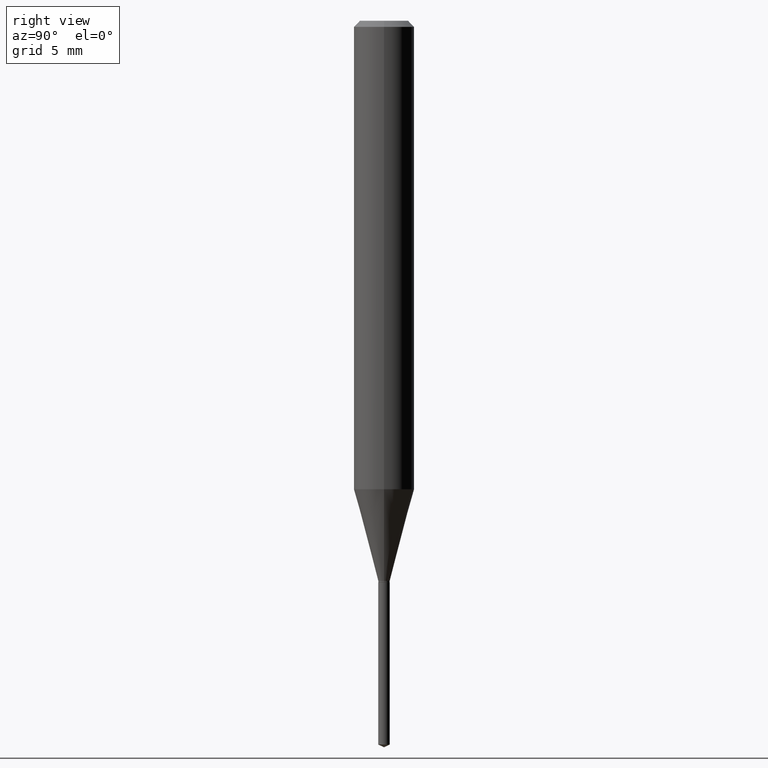
[diagram: clean part render]
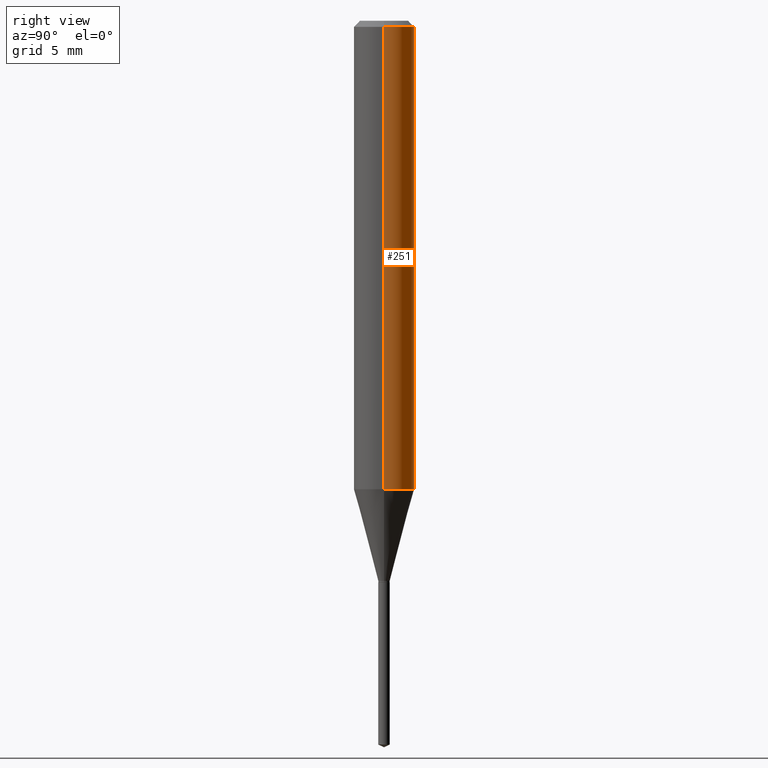
[diagram: same view with one face highlighted and labeled with its STEP entity id]
A machine part, right view. The second image highlights one B-rep face of the part: STEP entity #251.
In plain terms, the highlighted cylindrical surface (edge-blend (fillet) strip) has radius 1.5875 mm, axis along (-0, 0, 1).
Its self-contained STEP definition (entity closure, byte-faithful):
#2 = CIRCLE ( 'NONE', #232, 0.06250000000000000000 ) ;
#6 = DIRECTION ( 'NONE',  ( -2.445468806185136877E-29, 3.491481338843145188E-15, 1.000000000000000000 ) ) ;
#20 = DIRECTION ( 'NONE',  ( 1.000000000000000000, -6.982962677686264344E-15, 0.000000000000000000 ) ) ;
#33 = CARTESIAN_POINT ( 'NONE',  ( 3.056836007731441415E-31, -4.364351673553961684E-17, -0.01250000000000008396 ) ) ;
#37 = DIRECTION ( 'NONE',  ( -2.445468806185136597E-29, 3.491481338843145583E-15, 1.000000000000000000 ) ) ;
#43 = ORIENTED_EDGE ( 'NONE', *, *, #271, .T. ) ;
#47 = CARTESIAN_POINT ( 'NONE',  ( -0.06250000000000000000, -1.266361353935139822E-15, -0.01250000000000008396 ) ) ;
#56 = LINE ( 'NONE', #160, #204 ) ;
#72 = EDGE_CURVE ( 'NONE', #325, #250, #2, .T. ) ;
#89 = FACE_OUTER_BOUND ( 'NONE', #486, .T. ) ;
#103 = CIRCLE ( 'NONE', #375, 0.06250000000000012490 ) ;
#129 = DIRECTION ( 'NONE',  ( -2.445468806185136877E-29, 3.491481338843145188E-15, 1.000000000000000000 ) ) ;
#133 = CARTESIAN_POINT ( 'NONE',  ( 0.000000000000000000, 0.000000000000000000, 0.000000000000000000 ) ) ;
#160 = CARTESIAN_POINT ( 'NONE',  ( -0.06250000000000006939, 4.440892098500631092E-16, -3.074334431409319267E-30 ) ) ;
#189 = CARTESIAN_POINT ( 'NONE',  ( 0.06250000000000006939, -4.364351673553921624E-16, 3.047610484872463374E-30 ) ) ;
#197 = ORIENTED_EDGE ( 'NONE', *, *, #72, .F. ) ;
#201 = DIRECTION ( 'NONE',  ( 1.000000000000000000, -6.982962677686266711E-15, 4.876176775795935793E-29 ) ) ;
#203 = CYLINDRICAL_SURFACE ( 'NONE', #221, 0.06250000000000006939 ) ;
#204 = VECTOR ( 'NONE', #129, 39.37007874015748143 ) ;
#221 = AXIS2_PLACEMENT_3D ( 'NONE', #133, #384, #201 ) ;
#232 = AXIS2_PLACEMENT_3D ( 'NONE', #33, #37, #478 ) ;
#238 = CARTESIAN_POINT ( 'NONE',  ( 0.06250000000000000000, -4.800786840909313294E-16, -0.01250000000000008396 ) ) ;
#239 = VERTEX_POINT ( 'NONE', #278 ) ;
#250 = VERTEX_POINT ( 'NONE', #47 ) ;
#251 = ADVANCED_FACE ( 'NONE', ( #89 ), #203, .T. ) ;
#257 = LINE ( 'NONE', #189, #443 ) ;
#258 = EDGE_CURVE ( 'NONE', #239, #367, #103, .T. ) ;
#271 = EDGE_CURVE ( 'NONE', #367, #250, #56, .T. ) ;
#278 = CARTESIAN_POINT ( 'NONE',  ( 0.06250000000000013878, -3.813692778190260139E-15, -0.9672850240562579360 ) ) ;
#279 = CARTESIAN_POINT ( 'NONE',  ( 2.365465353019618098E-29, -3.377257610834867681E-15, -0.9672850240562579360 ) ) ;
#283 = DIRECTION ( 'NONE',  ( -2.445468806185136597E-29, 3.491481338843145583E-15, 1.000000000000000000 ) ) ;
#299 = CARTESIAN_POINT ( 'NONE',  ( -0.06250000000000013878, -2.933168400984803882E-15, -0.9672850240562579360 ) ) ;
#325 = VERTEX_POINT ( 'NONE', #238 ) ;
#366 = ORIENTED_EDGE ( 'NONE', *, *, #258, .T. ) ;
#367 = VERTEX_POINT ( 'NONE', #299 ) ;
#375 = AXIS2_PLACEMENT_3D ( 'NONE', #279, #283, #20 ) ;
#384 = DIRECTION ( 'NONE',  ( -2.445468806185136597E-29, 3.491481338843145583E-15, 1.000000000000000000 ) ) ;
#419 = EDGE_CURVE ( 'NONE', #239, #325, #257, .T. ) ;
#430 = ORIENTED_EDGE ( 'NONE', *, *, #419, .F. ) ;
#443 = VECTOR ( 'NONE', #6, 39.37007874015748143 ) ;
#478 = DIRECTION ( 'NONE',  ( 1.000000000000000000, -6.982962677686266711E-15, 0.000000000000000000 ) ) ;
#486 = EDGE_LOOP ( 'NONE', ( #366, #43, #197, #430 ) ) ;